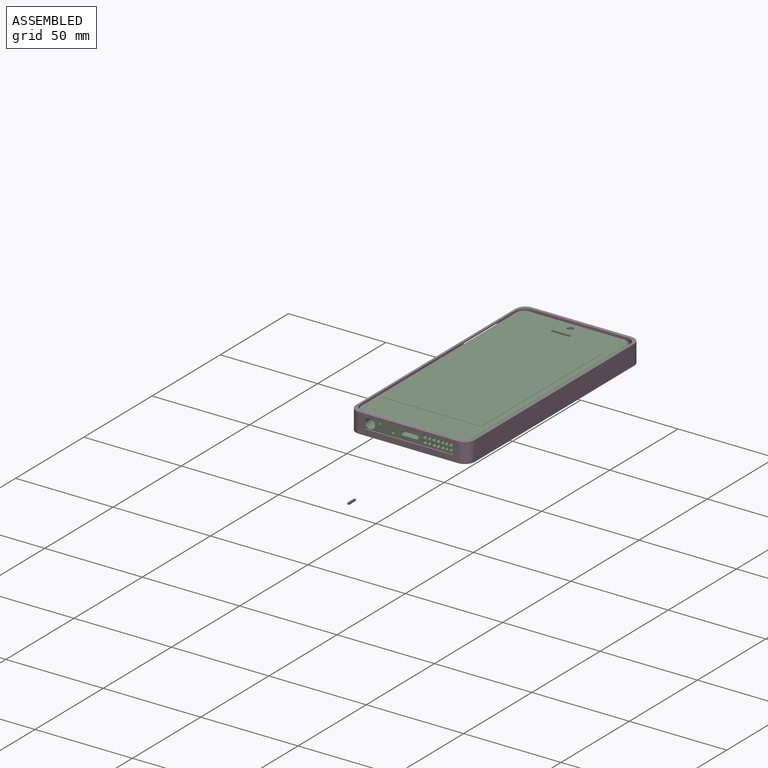
[diagram: assembled view]
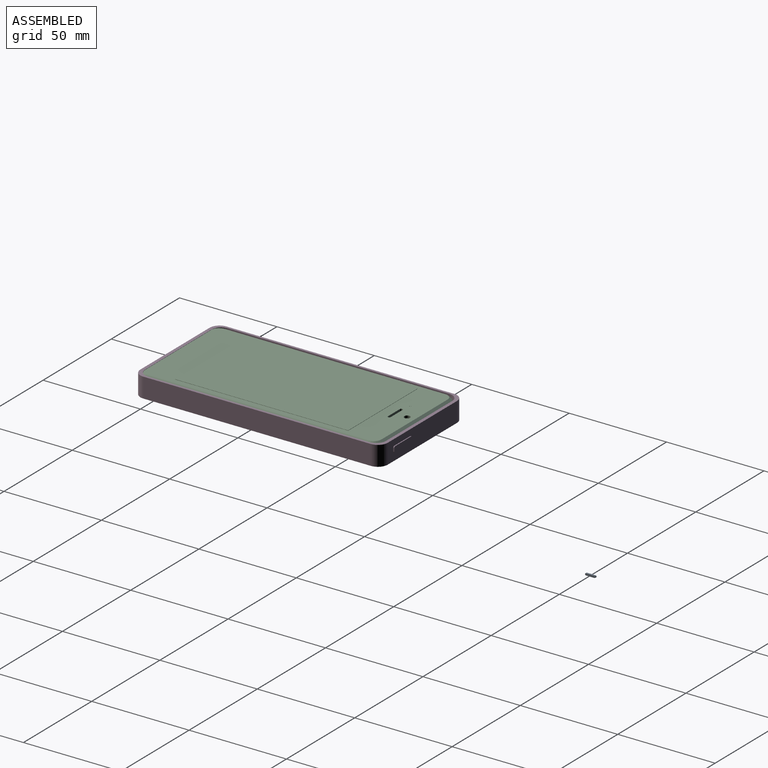
[diagram: assembled view, second angle]
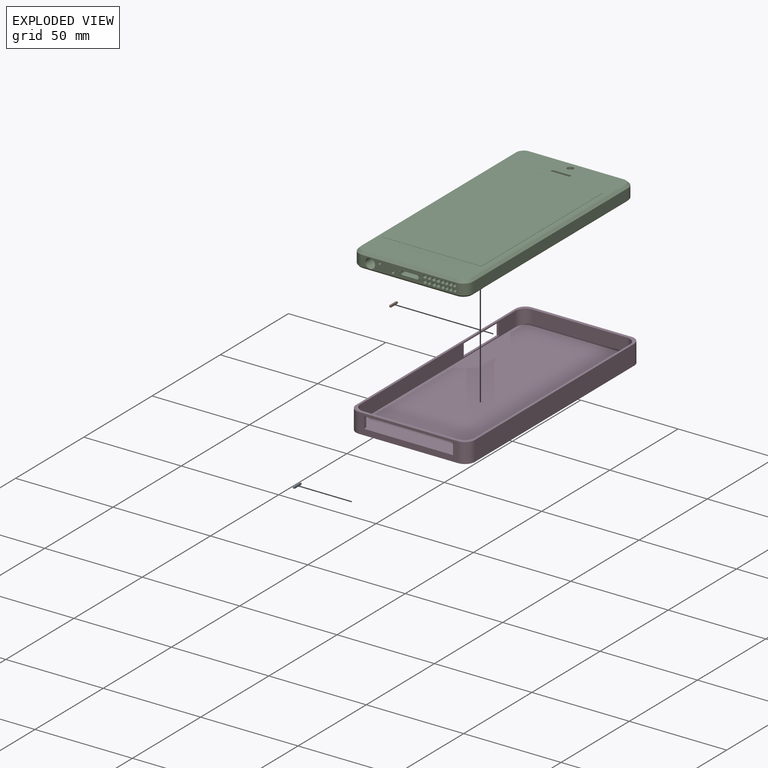
[diagram: exploded view]
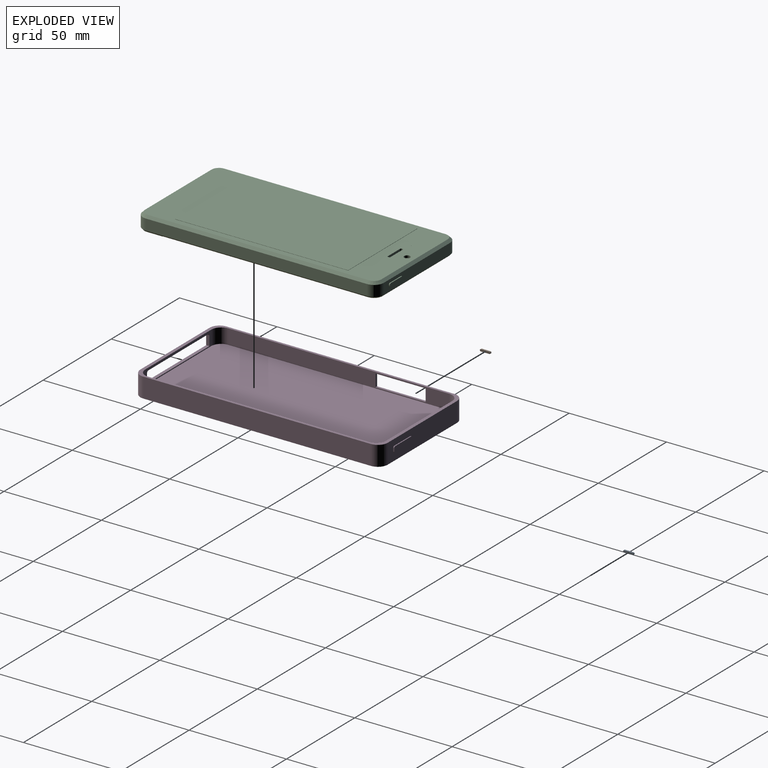
[diagram: exploded view, second angle]
ASSEMBLY  parts=4 mates=2
PART A: 10 faces, bbox 0.8x5.4x1 mm
  f0: plane 0.76x0.03mm, normal (0,1,0), area 0mm2, adj f4,f5,f6,f9
  f1: plane 4.37x0.76mm, normal (0,0,-1), area 3.3mm2, adj f4,f5,f6,f7
  f2: plane 0.76x0.03mm, normal (0,-1,0), area 0mm2, adj f4,f5,f7,f8
  f3: plane 4.37x0.76mm, normal (0,0,1), area 3.3mm2, adj f4,f5,f8,f9
  f4: plane 5.39x1.04mm, normal (-1,0,0), area 5.4mm2, adj f0,f1,f2,f3,f6,f7,f8,f9
  f5: plane 5.39x1.04mm, normal (1,0,0), area 5.4mm2, adj f0,f1,f2,f3,f6,f7,f8,f9
  f6: cylinder r=0.51mm len=0.76mm, axis (1,0,0), area 0.6mm2, adj f0,f1,f4,f5
  f7: cylinder r=0.51mm len=0.76mm, axis (-1,0,0), area 0.6mm2, adj f1,f2,f4,f5
  f8: cylinder r=0.51mm len=0.76mm, axis (1,0,0), area 0.6mm2, adj f2,f3,f4,f5
  f9: cylinder r=0.51mm len=0.76mm, axis (-1,0,0), area 0.6mm2, adj f0,f3,f4,f5
PART B: same geometry as A
PART C: 140 faces, bbox 59.4x124.3x8 mm
  f0: plane 48.51x5.59mm, normal (0,1,0), area 254.5mm2, adj f14,f15,f16,f53,f84,f85,f86,f87
  f1: plane 57.15x10mm, normal (0,0,-1), area 524.4mm2, adj f65,f66,f67,f68,f69,f70,f71,f73
  f2: plane 99.91x57.15mm, normal (0,0,-1), area 5709.8mm2, adj f50,f57,f59,f65
  f3: plane 113.54x5.59mm, normal (-1,0,0), area 601.3mm2, adj f12,f15,f19,f50,f93,f94,f95,f96
  f4: plane 48.51x5.59mm, normal (0,-1,0), area 193.7mm2, adj f12,f13,f23,f35,f36,f37,f38,f40
  f5: plane 113.54x5.59mm, normal (1,0,0), area 634.5mm2, adj f13,f14,f20,f57
  f6: plane 121.16x56.13mm, normal (0,0,1), area 2247.6mm2, adj f7,f8,f9,f10,f16,f17,f18,f19
  f7: plane 88.9x0.13mm, normal (-1,0,0), area 11.3mm2, adj f6,f8,f10,f11
  f8: plane 50.8x0.13mm, normal (0,-1,0), area 6.5mm2, adj f6,f7,f9,f11
  f9: plane 88.9x0.13mm, normal (1,0,0), area 11.3mm2, adj f6,f8,f10,f11
  f10: plane 50.8x0.13mm, normal (0,1,0), area 6.5mm2, adj f6,f7,f9,f11
  f11: plane 88.9x50.8mm, normal (0,0,1), area 4516.1mm2, adj f7,f8,f9,f10
  f12: cylinder r=5.08mm len=5.59mm, axis (0,0,-1), area 44.6mm2, adj f3,f4,f21,f52
  f13: cylinder r=5.08mm len=5.59mm, axis (0,0,1), area 44.6mm2, adj f4,f5,f22,f56
  f14: cylinder r=5.08mm len=5.59mm, axis (0,0,-1), area 44.6mm2, adj f0,f5,f18,f55
  f15: cylinder r=5.08mm len=5.59mm, axis (0,0,1), area 44.6mm2, adj f0,f3,f17,f51
  f16: plane 48.51x1.27mm, normal (0,0.71,0.71), area 87.1mm2, adj f0,f6,f17,f18
  f17: cone r=3.81mm half-angle=45deg, axis (0,0,-1), area 12.5mm2, adj f6,f15,f16,f19
  f18: cone r=3.81mm half-angle=45deg, axis (0,0,-1), area 12.5mm2, adj f6,f14,f16,f20
  f19: plane 113.54x1.27mm, normal (-0.71,0,0.71), area 203.9mm2, adj f3,f6,f17,f21
  f20: plane 113.54x1.27mm, normal (0.71,0,0.71), area 203.9mm2, adj f5,f6,f18,f22
  f21: cone r=3.81mm half-angle=45deg, axis (0,0,-1), area 12.5mm2, adj f6,f12,f19,f23
  f22: cone r=3.81mm half-angle=45deg, axis (0,0,-1), area 12.5mm2, adj f6,f13,f20,f23
  f23: plane 48.51x1.27mm, normal (0,-0.71,0.71), area 87.1mm2, adj f4,f6,f21,f22
  f24: plane 1.27x0.38mm, normal (1,0,0), area 0.5mm2, adj f6,f28,f33,f34
  f25: plane 8.98x1.27mm, normal (0,1,0), area 11.4mm2, adj f6,f28,f32,f33
  f26: plane 1.27x0.38mm, normal (-1,0,0), area 0.5mm2, adj f6,f28,f31,f32
  f27: plane 8.98x1.27mm, normal (0,-1,0), area 11.4mm2, adj f6,f28,f31,f34
  f28: plane 10x1.4mm, normal (0,0,1), area 13.8mm2, adj f24,f25,f26,f27,f31,f32,f33,f34
  f29: cylinder r=1.5mm len=3mm, axis (0,0,1), area 12mm2, adj f6,f30
  f30: plane 3x3mm, normal (0,0,1), area 7.1mm2, adj f29
  f31: cylinder r=0.51mm len=1.27mm, axis (0,0,-1), area 1mm2, adj f6,f26,f27,f28
  f32: cylinder r=0.51mm len=1.27mm, axis (0,0,1), area 1mm2, adj f6,f25,f26,f28
  f33: cylinder r=0.51mm len=1.27mm, axis (0,0,-1), area 1mm2, adj f6,f24,f25,f28
  f34: cylinder r=0.51mm len=1.27mm, axis (0,0,1), area 1mm2, adj f6,f24,f27,f28
  f35: plane 12.7x0.22mm, normal (1,0,0), area 2.8mm2, adj f4,f39,f40,f43
  f36: plane 12.7x7.22mm, normal (0,0,1), area 91.7mm2, adj f4,f39,f40,f41
  f37: plane 12.7x0.22mm, normal (-1,0,0), area 2.8mm2, adj f4,f39,f41,f42
  f38: plane 12.7x7.22mm, normal (0,0,-1), area 91.7mm2, adj f4,f39,f42,f43
  f39: plane 9x2mm, normal (0,-1,0), area 17.3mm2, adj f35,f36,f37,f38,f40,f41,f42,f43
  f40: cylinder r=0.89mm len=12.7mm, axis (0,1,0), area 17.7mm2, adj f4,f35,f36,f39
  f41: cylinder r=0.89mm len=12.7mm, axis (0,-1,0), area 17.7mm2, adj f4,f36,f37,f39
  f42: cylinder r=0.89mm len=12.7mm, axis (0,1,0), area 17.7mm2, adj f4,f37,f38,f39
  f43: cylinder r=0.89mm len=12.7mm, axis (0,-1,0), area 17.7mm2, adj f4,f35,f38,f39
  f44: cylinder r=0.5mm len=1mm, axis (0,1,0), area 0.4mm2, adj f4,f45
  f45: plane 1x1mm, normal (0,-1,0), area 0.8mm2, adj f44
  f46: cylinder r=0.5mm len=1mm, axis (0,1,0), area 0.4mm2, adj f4,f47
  f47: plane 1x1mm, normal (0,-1,0), area 0.8mm2, adj f46
  f48: cylinder r=1.14mm len=2.29mm, axis (0,0,-1), area 0.2mm2, adj f6,f49
  f49: plane 2.29x2.29mm, normal (0,0,1), area 4.1mm2, adj f48
  f50: plane 113.54x0.76mm, normal (-0.71,0,-0.71), area 122.4mm2, adj f2,f3,f51,f52,f58,f66
  f51: cone r=4.32mm half-angle=45deg, axis (0,0,1), area 8mm2, adj f15,f50,f53,f67
  f52: cone r=4.32mm half-angle=45deg, axis (0,0,1), area 8mm2, adj f12,f50,f54,f63
  f53: plane 48.51x0.76mm, normal (0,0.71,-0.71), area 52.3mm2, adj f0,f51,f55,f68
  f54: plane 48.51x0.76mm, normal (0,-0.71,-0.71), area 52.3mm2, adj f4,f52,f56,f62
  f55: cone r=4.32mm half-angle=45deg, axis (0,0,1), area 8mm2, adj f14,f53,f57,f69
  f56: cone r=4.32mm half-angle=45deg, axis (0,0,1), area 8mm2, adj f13,f54,f57,f61
  f57: plane 113.54x0.76mm, normal (0.71,0,-0.71), area 122.4mm2, adj f2,f5,f55,f56,f60,f70
  f58: plane 7.95x0.13mm, normal (-1,0,0), area 1mm2, adj f50,f59,f63,f64
  f59: plane 57.15x0.13mm, normal (0,1,0), area 7.3mm2, adj f2,f58,f60,f64
  f60: plane 7.95x0.13mm, normal (1,0,0), area 1mm2, adj f57,f59,f61,f64
  f61: cylinder r=4.32mm len=4.32mm, axis (0,0,1), area 0.9mm2, adj f56,f60,f62,f64
  f62: plane 48.51x0.13mm, normal (0,-1,0), area 6.2mm2, adj f54,f61,f63,f64
  f63: cylinder r=4.32mm len=4.32mm, axis (0,0,1), area 0.9mm2, adj f52,f58,f62,f64
  f64: plane 57.15x12.26mm, normal (0,0,-1), area 692.9mm2, adj f58,f59,f60,f61,f62,f63
  f65: plane 57.15x0.03mm, normal (0,-1,0), area 1.5mm2, adj f1,f2,f66,f70
  f66: plane 5.68x0.03mm, normal (-1,0,0), area 0.1mm2, adj f1,f50,f65,f67
  f67: cylinder r=4.32mm len=4.32mm, axis (0,0,1), area 0.2mm2, adj f1,f51,f66,f68
  f68: plane 48.51x0.03mm, normal (0,1,0), area 1.2mm2, adj f1,f53,f67,f69
  f69: cylinder r=4.32mm len=4.32mm, axis (0,0,1), area 0.2mm2, adj f1,f55,f68,f70
  f70: plane 5.68x0.03mm, normal (1,0,0), area 0.1mm2, adj f1,f57,f65,f69
  f71: cylinder r=3mm len=6mm, axis (0,0,1), area 4.3mm2, adj f1,f72
  f72: plane 6x6mm, normal (0,0,-1), area 28.3mm2, adj f71
  f73: cylinder r=0.69mm len=1.39mm, axis (0,0,1), area 1.1mm2, adj f1,f74
  f74: plane 1.39x1.39mm, normal (0,0,-1), area 1.5mm2, adj f73
  f75: plane 3.22x0.03mm, normal (-1,0,0), area 0.1mm2, adj f1,f79,f81,f82
  f76: plane 0.22x0.03mm, normal (0,1,0), area 0mm2, adj f1,f79,f80,f81
  f77: plane 3.22x0.03mm, normal (1,0,0), area 0.1mm2, adj f1,f79,f80,f83
  f78: plane 0.22x0.03mm, normal (0,-1,0), area 0mm2, adj f1,f79,f82,f83
  f79: plane 5x2mm, normal (0,0,-1), area 9.3mm2, adj f75,f76,f77,f78,f80,f81,f82,f83
  f80: cylinder r=0.89mm len=0.89mm, axis (0,0,-1), area 0mm2, adj f1,f76,f77,f79
  f81: cylinder r=0.89mm len=0.89mm, axis (0,0,1), area 0mm2, adj f1,f75,f76,f79
  f82: cylinder r=0.89mm len=0.89mm, axis (0,0,-1), area 0mm2, adj f1,f75,f78,f79
  f83: cylinder r=0.89mm len=0.89mm, axis (0,0,1), area 0mm2, adj f1,f77,f78,f79
  f84: plane 0.51x0.26mm, normal (1,0,0), area 0.1mm2, adj f0,f88,f89,f92
  f85: plane 8.02x0.51mm, normal (0,0,-1), area 4.1mm2, adj f0,f88,f89,f90
  f86: plane 0.51x0.26mm, normal (-1,0,0), area 0.1mm2, adj f0,f88,f90,f91
  f87: plane 8.02x0.51mm, normal (0,0,1), area 4.1mm2, adj f0,f88,f91,f92
  f88: plane 9.55x1.79mm, normal (0,1,0), area 16.6mm2, adj f84,f85,f86,f87,f89,f90,f91,f92
  f89: cylinder r=0.76mm len=0.76mm, axis (0,-1,0), area 0.6mm2, adj f0,f84,f85,f88
  f90: cylinder r=0.76mm len=0.76mm, axis (0,1,0), area 0.6mm2, adj f0,f85,f86,f88
  f91: cylinder r=0.76mm len=0.76mm, axis (0,-1,0), area 0.6mm2, adj f0,f86,f87,f88
  f92: cylinder r=0.76mm len=0.76mm, axis (0,1,0), area 0.6mm2, adj f0,f84,f87,f88
  f93: plane 2.3x0.76mm, normal (0,-1,0), area 1.8mm2, adj f3,f94,f96,f97
  f94: plane 5.76x0.76mm, normal (0,0,1), area 4.4mm2, adj f3,f93,f95,f97
  f95: plane 2.3x0.76mm, normal (0,1,0), area 1.8mm2, adj f3,f94,f96,f97
  f96: plane 5.76x0.76mm, normal (0,0,-1), area 4.4mm2, adj f3,f93,f95,f97
  f97: plane 5.76x2.3mm, normal (-1,0,0), area 13.3mm2, adj f93,f94,f95,f96
  f98: cylinder r=1.8mm len=3.61mm, axis (1,0,0), area 8.6mm2, adj f3,f99
  f99: plane 3.61x3.61mm, normal (-1,0,0), area 10.2mm2, adj f98
  f100: cylinder r=1.76mm len=3.51mm, axis (1,0,0), area 8.4mm2, adj f3,f101
  f101: plane 3.51x3.51mm, normal (-1,0,0), area 9.7mm2, adj f100
  f102: cylinder r=0.89mm len=25.4mm, axis (0,-1,0), area 141.5mm2, adj f4,f103
  f103: plane 1.77x1.77mm, normal (0,-1,0), area 2.5mm2, adj f102
  f104: cylinder r=0.85mm len=25.4mm, axis (0,-1,0), area 135.9mm2, adj f4,f105
  f105: plane 1.7x1.7mm, normal (0,-1,0), area 2.3mm2, adj f104
  f106: cylinder r=0.82mm len=25.4mm, axis (0,-1,0), area 130.4mm2, adj f4,f107
  f107: plane 1.63x1.63mm, normal (0,-1,0), area 2.1mm2, adj f106
  f108: cylinder r=0.91mm len=25.4mm, axis (0,-1,0), area 145.5mm2, adj f4,f109
  f109: plane 1.82x1.82mm, normal (0,-1,0), area 2.6mm2, adj f108
  f110: cylinder r=2.5mm len=25.4mm, axis (0,-1,0), area 399mm2, adj f4,f111
  f111: plane 5x5mm, normal (0,-1,0), area 19.6mm2, adj f110
  f112: cylinder r=0.61mm len=25.4mm, axis (0,-1,0), area 96.6mm2, adj f4,f113
  f113: plane 1.21x1.21mm, normal (0,-1,0), area 1.2mm2, adj f112
  f114: cylinder r=0.68mm len=25.4mm, axis (0,-1,0), area 108.7mm2, adj f4,f115
  f115: plane 1.36x1.36mm, normal (0,-1,0), area 1.5mm2, adj f114
  f116: cylinder r=0.85mm len=25.4mm, axis (0,-1,0), area 135.9mm2, adj f4,f117
  f117: plane 1.7x1.7mm, normal (0,-1,0), area 2.3mm2, adj f116
  f118: cylinder r=0.9mm len=25.4mm, axis (0,-1,0), area 143.4mm2, adj f4,f119
  f119: plane 1.8x1.8mm, normal (0,-1,0), area 2.5mm2, adj f118
  f120: cylinder r=0.92mm len=25.4mm, axis (0,-1,0), area 146.1mm2, adj f4,f121
  f121: plane 1.83x1.83mm, normal (0,-1,0), area 2.6mm2, adj f120
  f122: cylinder r=0.83mm len=25.4mm, axis (0,-1,0), area 131.8mm2, adj f4,f123
  f123: plane 1.65x1.65mm, normal (0,-1,0), area 2.1mm2, adj f122
  f124: cylinder r=0.86mm len=25.4mm, axis (0,-1,0), area 137.1mm2, adj f4,f125
  f125: plane 1.72x1.72mm, normal (0,-1,0), area 2.3mm2, adj f124
  f126: cylinder r=0.89mm len=25.4mm, axis (0,-1,0), area 141.3mm2, adj f4,f127
  f127: plane 1.77x1.77mm, normal (0,-1,0), area 2.5mm2, adj f126
  f128: cylinder r=0.76mm len=25.4mm, axis (0,-1,0), area 120.7mm2, adj f4,f129
  f129: plane 1.51x1.51mm, normal (0,-1,0), area 1.8mm2, adj f128
  f130: cylinder r=0.75mm len=25.4mm, axis (0,-1,0), area 119.6mm2, adj f4,f131
  f131: plane 1.5x1.5mm, normal (0,-1,0), area 1.8mm2, adj f130
  f132: cylinder r=0.83mm len=25.4mm, axis (0,-1,0), area 132mm2, adj f4,f133
  f133: plane 1.65x1.65mm, normal (0,-1,0), area 2.2mm2, adj f132
  f134: cylinder r=0.76mm len=25.4mm, axis (0,-1,0), area 121.8mm2, adj f4,f135
  f135: plane 1.53x1.53mm, normal (0,-1,0), area 1.8mm2, adj f134
  f136: cylinder r=0.87mm len=25.4mm, axis (0,-1,0), area 139.3mm2, adj f4,f137
  f137: plane 1.75x1.75mm, normal (0,-1,0), area 2.4mm2, adj f136
  f138: cylinder r=0.89mm len=25.4mm, axis (0,-1,0), area 141.3mm2, adj f4,f139
  f139: plane 1.77x1.77mm, normal (0,-1,0), area 2.5mm2, adj f138
PART D: 38 faces, bbox 61x127.5x10.2 mm
  f0: plane 50.8x10.16mm, normal (0,1,0), area 476.7mm2, adj f1,f5,f16,f17,f29,f30,f31,f32
  f1: plane 127x60.96mm, normal (0,0,1), area 484.1mm2, adj f0,f2,f3,f4,f6,f7,f8,f9
  f2: plane 50.8x10.16mm, normal (0,-1,0), area 249.5mm2, adj f1,f5,f15,f18,f19,f20,f21,f22
  f3: plane 116.84x10.16mm, normal (1,0,0), area 1187.1mm2, adj f1,f5,f15,f16
  f4: plane 116.84x10.16mm, normal (-1,0,0), area 1023.6mm2, adj f1,f5,f17,f18,f25,f26,f27,f28
  f5: plane 127x60.96mm, normal (0,0,-1), area 7719.8mm2, adj f0,f2,f3,f4,f15,f16,f17,f18
  f6: plane 48.51x7.62mm, normal (0,1,0), area 103mm2, adj f1,f10,f12,f14,f19,f20,f21,f22
  f7: plane 113.54x7.62mm, normal (-1,0,0), area 865.2mm2, adj f1,f10,f12,f13
  f8: plane 48.51x7.62mm, normal (0,-1,0), area 369.7mm2, adj f1,f10,f11,f13
  f9: plane 113.54x7.62mm, normal (1,0,0), area 701.6mm2, adj f1,f10,f11,f14,f25,f26,f27,f28
  f10: plane 123.7x58.67mm, normal (0,0,1), area 7235.7mm2, adj f6,f7,f8,f9,f11,f12,f13,f14
  f11: cylinder r=5.08mm len=7.62mm, axis (0,0,-1), area 60.8mm2, adj f1,f8,f9,f10
  f12: cylinder r=5.08mm len=7.62mm, axis (0,0,-1), area 60.8mm2, adj f1,f6,f7,f10
  f13: cylinder r=5.08mm len=7.62mm, axis (0,0,1), area 60.8mm2, adj f1,f7,f8,f10
  f14: cylinder r=5.08mm len=7.62mm, axis (0,0,1), area 60.8mm2, adj f1,f6,f9,f10
  f15: cylinder r=5.08mm len=10.16mm, axis (0,0,-1), area 81.1mm2, adj f1,f2,f3,f5
  f16: cylinder r=5.08mm len=10.16mm, axis (0,0,1), area 81.1mm2, adj f0,f1,f3,f5
  f17: cylinder r=5.08mm len=10.16mm, axis (0,0,-1), area 81.1mm2, adj f0,f1,f4,f5
  f18: cylinder r=5.08mm len=10.16mm, axis (0,0,1), area 81.1mm2, adj f1,f2,f4,f5
  f19: plane 4.83x1.65mm, normal (1,0,0), area 8mm2, adj f2,f6,f20,f24
  f20: plane 45.72x1.65mm, normal (0,0,1), area 75.5mm2, adj f2,f6,f19,f21
  f21: plane 4.83x1.65mm, normal (-1,0,0), area 8mm2, adj f2,f6,f20,f23
  f22: plane 43.69x1.65mm, normal (0,0,-1), area 72.1mm2, adj f2,f6,f23,f24
  f23: cylinder r=1.02mm len=1.65mm, axis (0,1,0), area 2.6mm2, adj f2,f6,f21,f22
  f24: cylinder r=1.02mm len=1.65mm, axis (0,-1,0), area 2.6mm2, adj f2,f6,f19,f22
  f25: plane 6.35x1.14mm, normal (0,-1,0), area 7.3mm2, adj f4,f9,f26,f28
  f26: plane 25.75x1.14mm, normal (0,0,1), area 29.4mm2, adj f4,f9,f25,f27
  f27: plane 6.35x1.14mm, normal (0,1,0), area 7.3mm2, adj f4,f9,f26,f28
  f28: plane 25.75x1.14mm, normal (0,0,-1), area 29.4mm2, adj f4,f9,f25,f27
  f29: plane 1.51x0.51mm, normal (1,0,0), area 0.8mm2, adj f0,f33,f34,f37
  f30: plane 11.62x0.51mm, normal (0,0,-1), area 5.9mm2, adj f0,f33,f34,f35
  f31: plane 1.51x0.51mm, normal (-1,0,0), area 0.8mm2, adj f0,f33,f35,f36
  f32: plane 11.62x0.51mm, normal (0,0,1), area 5.9mm2, adj f0,f33,f36,f37
  f33: plane 13.15x3.03mm, normal (0,1,0), area 39.4mm2, adj f29,f30,f31,f32,f34,f35,f36,f37
  f34: cylinder r=0.76mm len=0.76mm, axis (0,-1,0), area 0.6mm2, adj f0,f29,f30,f33
  f35: cylinder r=0.76mm len=0.76mm, axis (0,1,0), area 0.6mm2, adj f0,f30,f31,f33
  f36: cylinder r=0.76mm len=0.76mm, axis (0,-1,0), area 0.6mm2, adj f0,f31,f32,f33
  f37: cylinder r=0.76mm len=0.76mm, axis (0,1,0), area 0.6mm2, adj f0,f29,f32,f33
PLACE A t=(-124.45,-100.94,-14.23)mm
PLACE B rot(axis=(0,0,1),180deg) t=(-116.67,-15.28,97.94)mm
PLACE C t=(-34.28,-127,97.5)mm
PLACE D t=(-46.14,-111.03,94.96)mm
MATE fastened B.f4 <-> C.f97  axis (1,0,0) through (-74.72,-71.16,100.95)mm
MATE fastened D.f10 <-> C.f2  axis (0,0,1) through (-46.14,-111.03,97.5)mm
